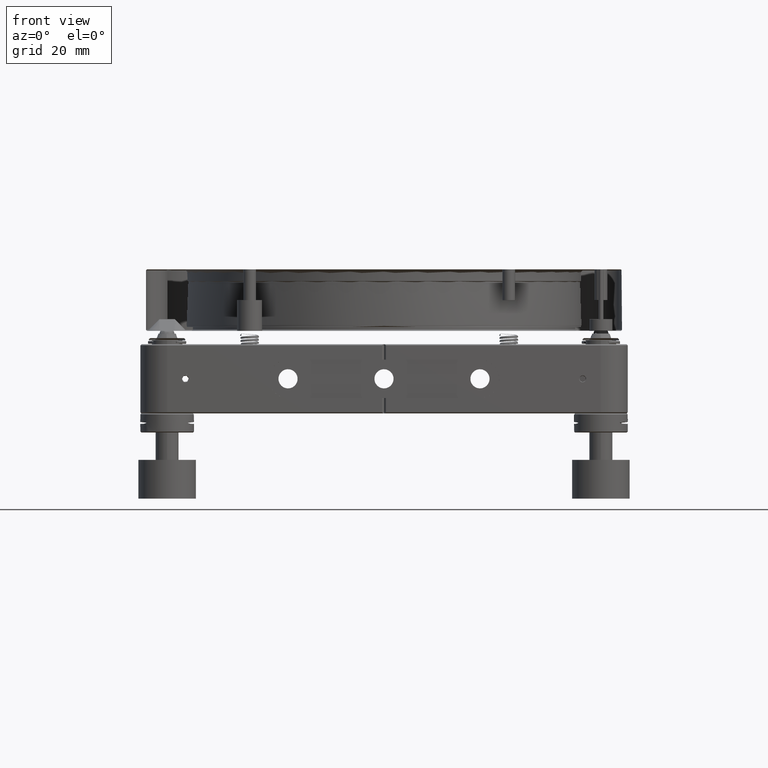
[diagram: clean part render]
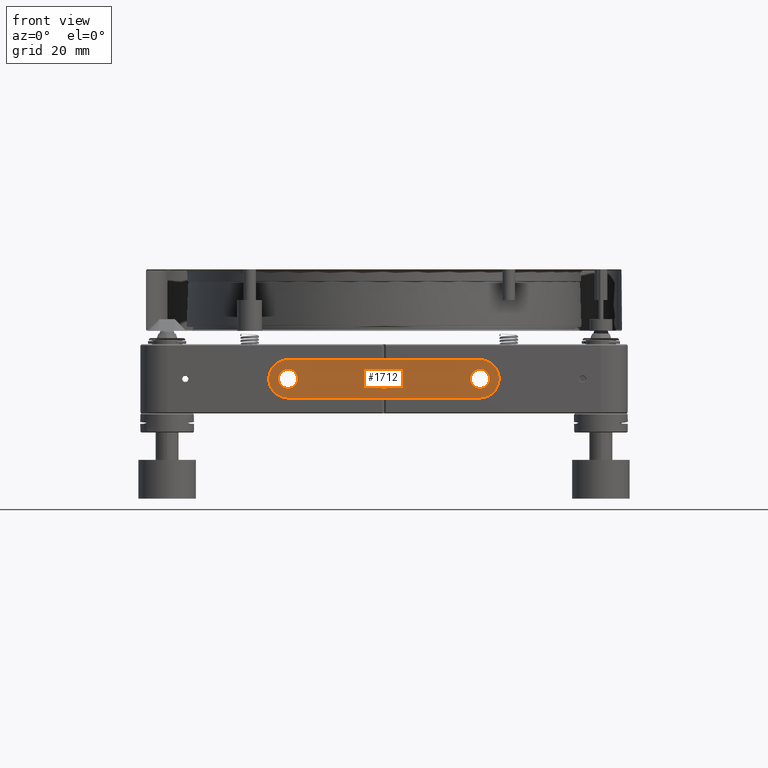
[diagram: same view with one face highlighted and labeled with its STEP entity id]
A machine part, front view. The second image highlights one B-rep face of the part: STEP entity #1712.
In plain terms, the highlighted planar face has unit normal (0, -1, 0).
Its self-contained STEP definition (entity closure, byte-faithful):
#39 = CARTESIAN_POINT ( 'NONE',  ( 28.65745963524035744, -62.99999999999998579, -3.413634435509056431 ) ) ;
#63 = CARTESIAN_POINT ( 'NONE',  ( -22.66760034583134598, -62.99999999999998579, -0.9001966847911081482 ) ) ;
#137 = VERTEX_POINT ( 'NONE', #17204 ) ;
#157 = CARTESIAN_POINT ( 'NONE',  ( 29.53337377807104858, -62.99999999999998579, -2.112177141283830828 ) ) ;
#185 = CARTESIAN_POINT ( 'NONE',  ( -25.88322341454923148, -62.99999999999997158, -2.338869636227246307 ) ) ;
#218 = CARTESIAN_POINT ( 'NONE',  ( 25.99979110497180557, -63.00000000000000000, -2.291518291723224632 ) ) ;
#274 = ORIENTED_EDGE ( 'NONE', *, *, #2098, .T. ) ;
#292 = CARTESIAN_POINT ( 'NONE',  ( -27.20036728157031547, -62.99999999999998579, -1.192851806848081786 ) ) ;
#326 = CARTESIAN_POINT ( 'NONE',  ( 25.31808423642111450, -62.99999999999998579, -2.499999999999988010 ) ) ;
#335 = CARTESIAN_POINT ( 'NONE',  ( -29.61721564279533325, -62.99999999999998579, 1.918790263200291557 ) ) ;
#375 = CARTESIAN_POINT ( 'NONE',  ( 29.40463598997589401, -62.99999999999997158, -2.376884631714613949 ) ) ;
#393 = CARTESIAN_POINT ( 'NONE',  ( -22.62750717870363104, -62.99999999999998579, -0.7901744029119247559 ) ) ;
#441 = CARTESIAN_POINT ( 'NONE',  ( -26.82085533151651546, -63.00000000000000000, 4.656705834973154268 ) ) ;
#492 = VERTEX_POINT ( 'NONE', #14996 ) ;
#553 = CARTESIAN_POINT ( 'NONE',  ( -26.76644682102774553, -63.00000000000000000, 4.677624995600781155 ) ) ;
#562 = CARTESIAN_POINT ( 'NONE',  ( 2.200367281571933287, -62.99999999999998579, 1.192851806846384699 ) ) ;
#614 = CARTESIAN_POINT ( 'NONE',  ( -25.31808423642359784, -63.00000000000000000, 2.499999999999994671 ) ) ;
#695 = CARTESIAN_POINT ( 'NONE',  ( 26.99648232654477553, -63.00000000000000000, 4.584313881982315486 ) ) ;
#768 = CARTESIAN_POINT ( 'NONE',  ( -29.63325495879742633, -62.99999999999998579, 1.879725603313253002 ) ) ;
#784 = CARTESIAN_POINT ( 'NONE',  ( 24.60695884761703667, -62.99999999999998579, -2.478058844081997947 ) ) ;
#881 = CARTESIAN_POINT ( 'NONE',  ( -26.99648232654283930, -62.99999999999998579, -4.584313881983445249 ) ) ;
#890 = CARTESIAN_POINT ( 'NONE',  ( 2.499932630023058877, -62.99999999999998579, 0.3175572163289239747 ) ) ;
#1009 = CARTESIAN_POINT ( 'NONE',  ( 23.47611484006083771, -63.00000000000000000, -2.011543708703912081 ) ) ;
#1043 = EDGE_CURVE ( 'NONE', #16677, #9239, #9490, .T. ) ;
#1106 = CARTESIAN_POINT ( 'NONE',  ( -28.99631896869059489, -63.00000000000000000, -3.024682387027708863 ) ) ;
#1126 = CARTESIAN_POINT ( 'NONE',  ( 22.55857726706113908, -62.99999999999997158, -0.6250002717117664197 ) ) ;
#1223 = CARTESIAN_POINT ( 'NONE',  ( -29.65670583497376356, -63.00000000000000000, -1.820855331515426334 ) ) ;
#1234 = CARTESIAN_POINT ( 'NONE',  ( 0.9602408923906317062, -62.99999999999998579, -2.308336204962085247 ) ) ;
#1243 = CARTESIAN_POINT ( 'NONE',  ( 23.94133748206389356, -63.00000000000001421, 2.265608056321490427 ) ) ;
#1291 = CARTESIAN_POINT ( 'NONE',  ( -1.058662517935616831, -63.00000000000001421, 2.265608056321512631 ) ) ;
#1410 = CARTESIAN_POINT ( 'NONE',  ( -2.050751496824272380, -62.99999999999998579, -1.448521019313458336 ) ) ;
#1441 = CARTESIAN_POINT ( 'NONE',  ( -25.00000000000000000, -62.99999999999998579, -2.499999999999989342 ) ) ;
#1477 = CARTESIAN_POINT ( 'NONE',  ( 27.41410801753523430, -62.99999999999998579, -0.6589295104400177960 ) ) ;
#1546 = CARTESIAN_POINT ( 'NONE',  ( -25.00000000000000000, -62.99999999999998579, 2.499999999999995115 ) ) ;
#1591 = CARTESIAN_POINT ( 'NONE',  ( 27.05075149682580715, -62.99999999999998579, 1.448521019312783320 ) ) ;
#1596 = VECTOR ( 'NONE', #19914, 1000.000000000000000 ) ;
#1640 = CARTESIAN_POINT ( 'NONE',  ( 29.58682686802303508, -62.99999999999998579, 1.997419278154202171 ) ) ;
#1705 = CARTESIAN_POINT ( 'NONE',  ( 25.15886374608104603, -62.99999999999997158, 2.499999999999995115 ) ) ;
#1712 = ADVANCED_FACE ( 'NONE', ( #17745, #21182, #17959, #12622 ), #5472, .T. ) ;
#1754 = CARTESIAN_POINT ( 'NONE',  ( 29.27735637908198640, -62.99999999999998579, -2.594781776741962531 ) ) ;
#1759 = CARTESIAN_POINT ( 'NONE',  ( -2.197608328451702064, -63.00000000000000000, 1.240878199725816922 ) ) ;
#1820 = CARTESIAN_POINT ( 'NONE',  ( 25.84608136104325027, -62.99999999999998579, 2.352582858675997812 ) ) ;
#1867 = CARTESIAN_POINT ( 'NONE',  ( 28.83008438849111954, -62.99999999999995737, -3.222274190315424391 ) ) ;
#1932 = CARTESIAN_POINT ( 'NONE',  ( 26.52388515993983376, -63.00000000000000000, 2.011543708704508049 ) ) ;
#1983 = CARTESIAN_POINT ( 'NONE',  ( 29.08871142856226300, -63.00000000000000000, -2.879225836244683645 ) ) ;
#2091 = CARTESIAN_POINT ( 'NONE',  ( 29.67763309198122101, -62.99999999999998579, 1.766426363815547296 ) ) ;
#2098 = EDGE_CURVE ( 'NONE', #15310, #10384, #14643, .T. ) ;
#2152 = CARTESIAN_POINT ( 'NONE',  ( 25.00000000000000000, -62.99999999999998579, -2.499999999999989342 ) ) ;
#2217 = CARTESIAN_POINT ( 'NONE',  ( -25.00000000000000000, -62.99999999999998579, -2.499999999999989342 ) ) ;
#2223 = CARTESIAN_POINT ( 'NONE',  ( -26.52388515994153551, -62.99999999999997158, -2.011543708703749544 ) ) ;
#2269 = CARTESIAN_POINT ( 'NONE',  ( -26.99741927815217224, -63.00000000000000000, 4.586826868024192372 ) ) ;
#2277 = DIRECTION ( 'NONE',  ( 0.000000000000000000, -1.000000000000000000, 0.000000000000000000 ) ) ;
#2281 = CARTESIAN_POINT ( 'NONE',  ( 2.050751496826440867, -62.99999999999998579, 1.448521019311168168 ) ) ;
#2306 = CARTESIAN_POINT ( 'NONE',  ( 26.18717296926685734, -63.00000000000000000, 4.858224524120602794 ) ) ;
#2333 = CARTESIAN_POINT ( 'NONE',  ( -26.05866251793728594, -62.99999999999998579, 2.265608056320328689 ) ) ;
#2487 = CARTESIAN_POINT ( 'NONE',  ( -27.66389036190169293, -62.99999999999998579, 4.232142202942585918 ) ) ;
#2597 = CARTESIAN_POINT ( 'NONE',  ( -29.48224539639718955, -62.99999999999998579, -2.227075478313985002 ) ) ;
#2614 = CARTESIAN_POINT ( 'NONE',  ( 22.64740161464915147, -62.99999999999997158, 0.8460421177830997896 ) ) ;
#2720 = CARTESIAN_POINT ( 'NONE',  ( 2.338877794310393998, -62.99999999999998579, -0.8832027952101421109 ) ) ;
#2821 = CARTESIAN_POINT ( 'NONE',  ( -27.80668226202149640, -62.99999999999998579, -4.138788144596949437 ) ) ;
#2831 = CARTESIAN_POINT ( 'NONE',  ( 1.448521019312495772, -62.99999999999998579, -2.050751496825837794 ) ) ;
#2938 = CARTESIAN_POINT ( 'NONE',  ( -25.98944765923300437, -63.00000000000001421, -4.901161759914474558 ) ) ;
#2949 = CARTESIAN_POINT ( 'NONE',  ( 2.372492821295961285, -63.00000000000001421, -0.7901744029160351346 ) ) ;
#2956 = CARTESIAN_POINT ( 'NONE',  ( 24.68191576358069739, -63.00000000000000000, 2.499999999999995115 ) ) ;
#3055 = CARTESIAN_POINT ( 'NONE',  ( -29.66345881266363449, -63.00000000000000000, -1.803482141347654943 ) ) ;
#3123 = CARTESIAN_POINT ( 'NONE',  ( -1.224646799147350002E-16, -62.99999999999998579, -2.499999999999992895 ) ) ;
#3193 = ORIENTED_EDGE ( 'NONE', *, *, #13800, .T. ) ;
#3258 = CARTESIAN_POINT ( 'NONE',  ( -24.34095874604167520, -63.00000000000000000, 2.414063805987865852 ) ) ;
#3266 = CARTESIAN_POINT ( 'NONE',  ( -25.79023958663312399, -63.00000000000000000, -2.372467031226667800 ) ) ;
#3348 = CARTESIAN_POINT ( 'NONE',  ( 27.44808808539379896, -63.00000000000001421, -4.360549651258586401 ) ) ;
#3460 = CARTESIAN_POINT ( 'NONE',  ( 28.98731338067594265, -63.00000000000000000, -3.018147385784606396 ) ) ;
#3466 = CARTESIAN_POINT ( 'NONE',  ( -2.332399654168844538, -63.00000000000000000, 0.9001966847908576819 ) ) ;
#3543 = CARTESIAN_POINT ( 'NONE',  ( 25.00000000000000000, -62.99999999999998579, 5.000000000000009770 ) ) ;
#3576 = CARTESIAN_POINT ( 'NONE',  ( 28.22227419030972939, -63.00000000000000000, 3.830084388496846959 ) ) ;
#3591 = B_SPLINE_CURVE_WITH_KNOTS ( 'NONE', 3,
 ( #1546, #8234, #20325, #3258, #15192, #15305, #10169, #22043, #13369, #4736, #8462, #11654, #17124, #13486, #4857, #9020, #12564, #12675, #5414, #10622, #7421, #20900, #393, #16091, #15873, #63, #7307, #19510, #14270, #12229, #10837, #3926, #17794, #10946, #14378, #9127, #6984, #2217 ),
 .UNSPECIFIED., .F., .F.,
 ( 4, 1, 1, 1, 2, 2, 2, 1, 1, 1, 2, 2, 2, 1, 1, 1, 2, 2, 2, 1, 1, 1, 2, 2, 4 ),
 ( 0.000000000000000000, 0.06249999999999912570, 0.09374999999999870937, 0.1093749999999991673, 0.1171874999999993616, 0.1249999999999995559, 0.2499999999999983902, 0.3124999999999977796, 0.3437499999999975020, 0.3593749999999973910, 0.3671874999999971134, 0.3749999999999968359, 0.4999999999999930056, 0.5624999999999911182, 0.5937499999999901190, 0.6093749999999897859, 0.6171874999999896749, 0.6249999999999895639, 0.7499999999999905631, 0.8124999999999912292, 0.8437499999999908962, 0.8593749999999913403, 0.8671874999999915623, 0.8749999999999917843, 1.000000000000000000 ),
 .UNSPECIFIED. ) ;
#3606 = CARTESIAN_POINT ( 'NONE',  ( -27.47811779281090949, -62.99999999999998579, 0.3928921610239097806 ) ) ;
#3636 = CARTESIAN_POINT ( 'NONE',  ( 27.26560805632139051, -62.99999999999998579, 1.058662517935855085 ) ) ;
#3684 = CARTESIAN_POINT ( 'NONE',  ( 27.59350902500160885, -63.00000000000000000, -4.275615982597602560 ) ) ;
#3712 = CARTESIAN_POINT ( 'NONE',  ( -27.05075149682427949, -62.99999999999998579, -1.448521019313433689 ) ) ;
#3753 = CARTESIAN_POINT ( 'NONE',  ( 26.05866251793718291, -62.99999999999998579, -2.265608056320766561 ) ) ;
#3762 = CARTESIAN_POINT ( 'NONE',  ( -28.98731338068604657, -63.00000000000000000, 3.018147385774896385 ) ) ;
#3802 = CARTESIAN_POINT ( 'NONE',  ( 29.69855148292365499, -62.99999999999998579, 1.710778326449314601 ) ) ;
#3880 = CARTESIAN_POINT ( 'NONE',  ( 0.1588637460817494684, -63.00000000000000000, 2.499999999999993339 ) ) ;
#3926 = CARTESIAN_POINT ( 'NONE',  ( -23.94133748206292012, -62.99999999999998579, -2.265608056320463692 ) ) ;
#3945 = EDGE_CURVE ( 'NONE', #137, #15310, #18559, .T. ) ;
#3979 = CARTESIAN_POINT ( 'NONE',  ( -28.29168244730281145, -63.00000000000000000, 3.779332846794235312 ) ) ;
#4041 = CARTESIAN_POINT ( 'NONE',  ( -25.99979110497188728, -62.99999999999998579, 2.291518291722963507 ) ) ;
#4086 = CARTESIAN_POINT ( 'NONE',  ( -29.08871142856869696, -63.00000000000001421, 2.879225836238513025 ) ) ;
#4187 = ORIENTED_EDGE ( 'NONE', *, *, #11463, .T. ) ;
#4194 = CARTESIAN_POINT ( 'NONE',  ( -29.53337377808218989, -63.00000000000000000, 2.112177141261452284 ) ) ;
#4226 = CARTESIAN_POINT ( 'NONE',  ( 26.91885272841129861, -63.00000000000000000, 4.617333232621682271 ) ) ;
#4305 = CARTESIAN_POINT ( 'NONE',  ( -27.87922583624148487, -62.99999999999998579, -4.088711428565466655 ) ) ;
#4339 = CARTESIAN_POINT ( 'NONE',  ( 25.98944765923365097, -63.00000000000000000, 4.901161759914417715 ) ) ;
#4371 = ORIENTED_EDGE ( 'NONE', *, *, #1043, .T. ) ;
#4432 = CARTESIAN_POINT ( 'NONE',  ( 22.80239167154934776, -63.00000000000000000, 1.240878199725621522 ) ) ;
#4515 = ORIENTED_EDGE ( 'NONE', *, *, #3945, .T. ) ;
#4523 = EDGE_CURVE ( 'NONE', #492, #13865, #17528, .T. ) ;
#4531 = CARTESIAN_POINT ( 'NONE',  ( -29.69855148292365499, -63.00000000000000000, -1.710778326451560583 ) ) ;
#4548 = CARTESIAN_POINT ( 'NONE',  ( 23.35412142490235254, -62.99999999999998579, 1.889707849479767221 ) ) ;
#4659 = CARTESIAN_POINT ( 'NONE',  ( 2.352598385350364918, -63.00000000000000000, -0.8460421177848148622 ) ) ;
#4669 = CARTESIAN_POINT ( 'NONE',  ( 25.00000000000000000, -62.99999999999998579, 2.499999999999995115 ) ) ;
#4695 = CARTESIAN_POINT ( 'NONE',  ( 25.00000000000000000, -62.99999999999998579, -4.999999999999990230 ) ) ;
#4719 = ORIENTED_EDGE ( 'NONE', *, *, #4523, .T. ) ;
#4736 = CARTESIAN_POINT ( 'NONE',  ( -23.47611484006164417, -62.99999999999997158, 2.011543708708192213 ) ) ;
#4784 = CARTESIAN_POINT ( 'NONE',  ( 23.55147898068659984, -63.00000000000000000, 2.050751496826031417 ) ) ;
#4835 = CARTESIAN_POINT ( 'NONE',  ( -2.441422732939904972, -62.99999999999998579, -0.6250002717145693998 ) ) ;
#4857 = CARTESIAN_POINT ( 'NONE',  ( -22.70848170827606083, -62.99999999999998579, 0.9997911049701574404 ) ) ;
#4903 = CARTESIAN_POINT ( 'NONE',  ( 27.44142273294093926, -62.99999999999997158, 0.6250002717085844095 ) ) ;
#5014 = CARTESIAN_POINT ( 'NONE',  ( 27.35259838535036181, -62.99999999999998579, -0.8460421177848109764 ) ) ;
#5166 = CARTESIAN_POINT ( 'NONE',  ( 29.63325495879537286, -63.00000000000000000, -1.879725603317363936 ) ) ;
#5170 = CARTESIAN_POINT ( 'NONE',  ( -2.265608056320723040, -62.99999999999998579, -1.058662517936148406 ) ) ;
#5279 = CARTESIAN_POINT ( 'NONE',  ( 28.01814738578012864, -62.99999999999997158, 3.987313380680431063 ) ) ;
#5285 = CARTESIAN_POINT ( 'NONE',  ( -1.645878575096990204, -63.00000000000001421, 1.889707849479796975 ) ) ;
#5341 = CARTESIAN_POINT ( 'NONE',  ( 26.88970784947963821, -63.00000000000001421, 1.645878575097296626 ) ) ;
#5393 = CARTESIAN_POINT ( 'NONE',  ( 28.99631896869385628, -62.99999999999998579, 3.024682387024473229 ) ) ;
#5414 = CARTESIAN_POINT ( 'NONE',  ( -22.50006736997797674, -62.99999999999998579, 0.3175572163181977769 ) ) ;
#5472 = PLANE ( 'NONE',  #10967 ) ;
#5571 = CARTESIAN_POINT ( 'NONE',  ( -30.00003370200636610, -63.00000000000001421, -0.3177315870937306164 ) ) ;
#5636 = CARTESIAN_POINT ( 'NONE',  ( -25.62482982772515783, -62.99999999999997158, 2.441490250885353763 ) ) ;
#5689 = CARTESIAN_POINT ( 'NONE',  ( 0.9001966847906652802, -62.99999999999998579, 2.332399654168985759 ) ) ;
#5743 = CARTESIAN_POINT ( 'NONE',  ( -27.33239965416879613, -62.99999999999998579, 0.9001966847909936842 ) ) ;
#5793 = CARTESIAN_POINT ( 'NONE',  ( 25.00000000000000000, -62.99999999999998579, 1.531726841841384132E-14 ) ) ;
#5796 = CARTESIAN_POINT ( 'NONE',  ( 1.523885159939089684, -62.99999999999998579, 2.011543708706347022 ) ) ;
#5844 = EDGE_LOOP ( 'NONE', ( #4371, #12408 ) ) ;
#5846 = CARTESIAN_POINT ( 'NONE',  ( -25.90019668479078518, -63.00000000000000000, -2.332399654168878289 ) ) ;
#5924 = CARTESIAN_POINT ( 'NONE',  ( 26.87812417501154272, -63.00000000000000000, 4.634031467658619619 ) ) ;
#6108 = DIRECTION ( 'NONE',  ( 1.000000000000000000, -0.000000000000000000, 3.122502256758252770E-16 ) ) ;
#6116 = CARTESIAN_POINT ( 'NONE',  ( 2.265608056321665398, -62.99999999999998579, 1.058662517935147429 ) ) ;
#6153 = B_SPLINE_CURVE_WITH_KNOTS ( 'NONE', 3,
 ( #21194, #20134, #784, #21969, #14883, #13079, #14659, #21851, #16709, #1009, #14998, #6464, #20254, #7929, #18421, #18190, #13419, #1126, #13191, #7708, #20371, #16827, #14771, #2614, #6344, #20016, #4432, #6234, #4548, #4784, #11349, #1243, #18304, #21743, #9987, #11468, #2956, #4669 ),
 .UNSPECIFIED., .F., .F.,
 ( 4, 1, 1, 1, 2, 2, 2, 1, 1, 1, 2, 2, 2, 1, 1, 1, 2, 2, 2, 1, 1, 1, 2, 2, 4 ),
 ( 0.000000000000000000, 0.06250000000000097145, 0.09375000000000079103, 0.1093750000000006939, 0.1171875000000006245, 0.1250000000000005551, 0.2500000000000000000, 0.3124999999999992228, 0.3437499999999992228, 0.3593749999999992228, 0.3671874999999993894, 0.3749999999999996114, 0.5000000000000058842, 0.5625000000000089928, 0.5937500000000105471, 0.6093750000000114353, 0.6171875000000118794, 0.6250000000000124345, 0.7500000000000157652, 0.8125000000000170974, 0.8437500000000183187, 0.8593750000000183187, 0.8671875000000183187, 0.8750000000000184297, 1.000000000000000000 ),
 .UNSPECIFIED. ) ;
#6234 = CARTESIAN_POINT ( 'NONE',  ( 22.98845629129619894, -62.99999999999998579, 1.523885159939563527 ) ) ;
#6327 = CARTESIAN_POINT ( 'NONE',  ( -29.36054965125114080, -63.00000000000000000, -2.448088085406040282 ) ) ;
#6338 = CARTESIAN_POINT ( 'NONE',  ( 2.478117792811819431, -62.99999999999998579, -0.3928921610258919173 ) ) ;
#6344 = CARTESIAN_POINT ( 'NONE',  ( 22.66112220568935243, -63.00000000000000000, 0.8832027952092421641 ) ) ;
#6455 = CARTESIAN_POINT ( 'NONE',  ( 0.9997911049709309328, -63.00000000000000000, -2.291518291723609213 ) ) ;
#6464 = CARTESIAN_POINT ( 'NONE',  ( 22.94924850317362086, -63.00000000000000000, -1.448521019313290914 ) ) ;
#6510 = CARTESIAN_POINT ( 'NONE',  ( -0.9997911049708632092, -62.99999999999998579, 2.291518291723675826 ) ) ;
#6540 = VERTEX_POINT ( 'NONE', #16028 ) ;
#6690 = CARTESIAN_POINT ( 'NONE',  ( 27.19760832844967879, -63.00000000000000000, -1.240878199725687026 ) ) ;
#6954 = CARTESIAN_POINT ( 'NONE',  ( 29.82817184585908876, -62.99999999999998579, 1.318087882501627561 ) ) ;
#6958 = CARTESIAN_POINT ( 'NONE',  ( -1.448521019312252411, -62.99999999999998579, 2.050751496826083375 ) ) ;
#6984 = CARTESIAN_POINT ( 'NONE',  ( -24.68191576357675743, -63.00000000000001421, -2.499999999999988898 ) ) ;
#7077 = CARTESIAN_POINT ( 'NONE',  ( 29.59280389929835664, -63.00000000000000000, -1.977199857427052843 ) ) ;
#7185 = CARTESIAN_POINT ( 'NONE',  ( 30.00003370200635544, -63.00000000000000000, 0.3177315870882264082 ) ) ;
#7213 = CARTESIAN_POINT ( 'NONE',  ( -27.33887779431028520, -63.00000000000000000, 0.8832027952098696622 ) ) ;
#7252 = CARTESIAN_POINT ( 'NONE',  ( -29.64162989536004744, -62.99999999999997158, 1.858936727243038822 ) ) ;
#7307 = CARTESIAN_POINT ( 'NONE',  ( -22.80239167154529767, -62.99999999999998579, -1.240878199721766606 ) ) ;
#7314 = CARTESIAN_POINT ( 'NONE',  ( -27.29151829172320376, -62.99999999999997158, -0.9997911049711722953 ) ) ;
#7362 = CARTESIAN_POINT ( 'NONE',  ( -28.02468238702178382, -62.99999999999998579, 3.996318968695973695 ) ) ;
#7421 = CARTESIAN_POINT ( 'NONE',  ( -22.52188220718726797, -62.99999999999998579, -0.3928921610165019840 ) ) ;
#7456 = LINE ( 'NONE', #3543, #13251 ) ;
#7510 = CARTESIAN_POINT ( 'NONE',  ( 26.04898709126347356, -62.99999999999998579, 4.889020966873618868 ) ) ;
#7538 = CARTESIAN_POINT ( 'NONE',  ( -27.35259838535012733, -62.99999999999998579, 0.8460421177842942786 ) ) ;
#7575 = CARTESIAN_POINT ( 'NONE',  ( 25.62482982772267093, -62.99999999999997158, -2.441490250885347546 ) ) ;
#7688 = CARTESIAN_POINT ( 'NONE',  ( -26.18717296926498506, -63.00000000000001421, -4.858224524120768884 ) ) ;
#7708 = CARTESIAN_POINT ( 'NONE',  ( 22.49996631501050359, -63.00000000000000000, 0.1587786081607391042 ) ) ;
#7811 = CARTESIAN_POINT ( 'NONE',  ( 1.058662517935727632, -63.00000000000001421, -2.265608056321403829 ) ) ;
#7929 = CARTESIAN_POINT ( 'NONE',  ( 22.73439194367835725, -62.99999999999998579, -1.058662517936073133 ) ) ;
#8093 = EDGE_CURVE ( 'NONE', #10384, #21023, #12974, .T. ) ;
#8145 = CARTESIAN_POINT ( 'NONE',  ( -27.37688463170090358, -63.00000000000000000, -4.404635989982694788 ) ) ;
#8212 = CARTESIAN_POINT ( 'NONE',  ( -2.011543708705106237, -62.99999999999997158, 1.523885159939499578 ) ) ;
#8234 = CARTESIAN_POINT ( 'NONE',  ( -24.84113625391682234, -62.99999999999998579, 2.499999999999995115 ) ) ;
#8334 = ORIENTED_EDGE ( 'NONE', *, *, #16114, .T. ) ;
#8355 = CARTESIAN_POINT ( 'NONE',  ( -25.15886374608065879, -63.00000000000000000, -2.499999999999988898 ) ) ;
#8406 = CARTESIAN_POINT ( 'NONE',  ( -25.00000000000000000, -62.99999999999998579, -5.000000000000002665 ) ) ;
#8440 = CARTESIAN_POINT ( 'NONE',  ( -2.414108017535905759, -63.00000000000000000, 0.6589295104351285959 ) ) ;
#8462 = CARTESIAN_POINT ( 'NONE',  ( -23.11029215051964059, -63.00000000000001421, 1.645878575095454099 ) ) ;
#8533 = DIRECTION ( 'NONE',  ( 1.000000000000000000, -0.000000000000000000, 3.122502256758252770E-16 ) ) ;
#8552 = CARTESIAN_POINT ( 'NONE',  ( 29.48224539640385089, -62.99999999999998579, 2.227075478302363631 ) ) ;
#8615 = CARTESIAN_POINT ( 'NONE',  ( 25.88322341454932385, -63.00000000000000000, 2.338869636227253856 ) ) ;
#8667 = CARTESIAN_POINT ( 'NONE',  ( 28.29168244731750903, -62.99999999999997158, -3.779332846780062649 ) ) ;
#8672 = CARTESIAN_POINT ( 'NONE',  ( -1.192851806847200269, -63.00000000000000000, 2.200367281571662392 ) ) ;
#8785 = CARTESIAN_POINT ( 'NONE',  ( 26.82085533151655099, -62.99999999999998579, -4.656705834973076108 ) ) ;
#8812 = ORIENTED_EDGE ( 'NONE', *, *, #13852, .T. ) ;
#8895 = CARTESIAN_POINT ( 'NONE',  ( 27.66389036190081185, -62.99999999999998579, -4.232142202943312448 ) ) ;
#8999 = CARTESIAN_POINT ( 'NONE',  ( 25.31781674231116597, -62.99999999999998579, -4.999999999999992895 ) ) ;
#9020 = CARTESIAN_POINT ( 'NONE',  ( -22.69166379503773356, -63.00000000000000000, 0.9602408923902253646 ) ) ;
#9083 = CARTESIAN_POINT ( 'NONE',  ( 0.8460813610435675702, -62.99999999999998579, 2.352582858675995148 ) ) ;
#9127 = CARTESIAN_POINT ( 'NONE',  ( -24.37517017227519034, -62.99999999999998579, -2.441490250885347102 ) ) ;
#9134 = CARTESIAN_POINT ( 'NONE',  ( -25.84608136104306553, -62.99999999999997158, -2.352582858675989819 ) ) ;
#9239 = VERTEX_POINT ( 'NONE', #20328 ) ;
#9276 = CARTESIAN_POINT ( 'NONE',  ( 25.93869970804105662, -63.00000000000000000, -2.317157034016734229 ) ) ;
#9428 = CARTESIAN_POINT ( 'NONE',  ( 26.68987103900067126, -62.99999999999998579, 4.708581655926342258 ) ) ;
#9490 = B_SPLINE_CURVE_WITH_KNOTS ( 'NONE', 3,
 ( #3123, #18818, #16873, #13697, #20418, #9915, #12211, #15171, #13466, #19163, #15517, #1410, #22489, #5170, #19043, #20771, #20881, #4835, #12099, #13922, #22141, #8440, #17336, #20654, #17104, #3466, #1759, #8212, #5285, #6958, #8672, #1291, #6510, #11757, #18699, #10267, #22379, #10033 ),
 .UNSPECIFIED., .F., .F.,
 ( 4, 1, 1, 1, 2, 2, 2, 1, 1, 1, 2, 2, 2, 1, 1, 1, 2, 2, 2, 1, 1, 1, 2, 2, 4 ),
 ( 0.000000000000000000, 0.06249999999999988898, 0.09374999999999986122, 0.1093749999999998612, 0.1171874999999998890, 0.1249999999999999167, 0.2500000000000002220, 0.3125000000000003331, 0.3437500000000003886, 0.3593750000000003331, 0.3671875000000003331, 0.3750000000000003331, 0.5000000000000002220, 0.5625000000000001110, 0.5937500000000000000, 0.6093750000000000000, 0.6171875000000000000, 0.6250000000000000000, 0.7499999999999997780, 0.8124999999999996669, 0.8437499999999996669, 0.8593749999999996669, 0.8671874999999996669, 0.8749999999999996669, 1.000000000000000000 ),
 .UNSPECIFIED. ) ;
#9506 = CARTESIAN_POINT ( 'NONE',  ( -26.46058687167309031, -63.00000000000000000, -4.786759935983535108 ) ) ;
#9542 = CARTESIAN_POINT ( 'NONE',  ( 26.46058687167558077, -63.00000000000000000, 4.786759935983313952 ) ) ;
#9628 = CARTESIAN_POINT ( 'NONE',  ( 2.441422732940944140, -62.99999999999997158, 0.6250002717085818560 ) ) ;
#9727 = LINE ( 'NONE', #18402, #17290 ) ;
#9845 = CARTESIAN_POINT ( 'NONE',  ( -28.01814738577957797, -63.00000000000000000, -3.987313380680978181 ) ) ;
#9915 = CARTESIAN_POINT ( 'NONE',  ( -0.8460813610437932786, -62.99999999999998579, -2.352582858675995592 ) ) ;
#9966 = CARTESIAN_POINT ( 'NONE',  ( -29.67763309198120680, -62.99999999999998579, -1.766426363816855583 ) ) ;
#9987 = CARTESIAN_POINT ( 'NONE',  ( 24.06130029195884390, -62.99999999999998579, 2.317157034016741779 ) ) ;
#10033 = CARTESIAN_POINT ( 'NONE',  ( 1.836970198721025004E-16, -62.99999999999998579, 2.499999999999992895 ) ) ;
#10100 = CARTESIAN_POINT ( 'NONE',  ( 27.50003368498846612, -62.99999999999998579, -0.1587786081644574632 ) ) ;
#10169 = CARTESIAN_POINT ( 'NONE',  ( -24.11677658545017522, -62.99999999999998579, 2.338869636227252080 ) ) ;
#10209 = CARTESIAN_POINT ( 'NONE',  ( 27.33887779431040244, -63.00000000000000000, -0.8832027952101385582 ) ) ;
#10262 = CARTESIAN_POINT ( 'NONE',  ( 29.61721564279143593, -62.99999999999997158, -1.918790263208135727 ) ) ;
#10267 = CARTESIAN_POINT ( 'NONE',  ( -0.6248298277219418440, -63.00000000000000000, 2.441490250885352875 ) ) ;
#10322 = EDGE_CURVE ( 'NONE', #16175, #15318, #3591, .T. ) ;
#10374 = CARTESIAN_POINT ( 'NONE',  ( 29.23214220294310906, -63.00000000000001421, 2.663890361901039228 ) ) ;
#10384 = VERTEX_POINT ( 'NONE', #19180 ) ;
#10439 = CARTESIAN_POINT ( 'NONE',  ( 25.39304115237993287, -62.99999999999998579, 2.478058844082004164 ) ) ;
#10490 = CARTESIAN_POINT ( 'NONE',  ( 27.87922583624185080, -62.99999999999998579, 4.088711428565124706 ) ) ;
#10521 = CARTESIAN_POINT ( 'NONE',  ( -27.44142273294199086, -62.99999999999998579, -0.6250002717092797422 ) ) ;
#10599 = CARTESIAN_POINT ( 'NONE',  ( 28.02468238702532233, -63.00000000000000000, -3.996318968692976092 ) ) ;
#10622 = CARTESIAN_POINT ( 'NONE',  ( -22.49996631501101874, -63.00000000000000000, -0.1587786081590943366 ) ) ;
#10714 = CARTESIAN_POINT ( 'NONE',  ( 25.78623849252068112, -62.99999999999998579, -4.956117688164009216 ) ) ;
#10795 = CARTESIAN_POINT ( 'NONE',  ( 0.3930411523811468411, -62.99999999999998579, 2.478058844082002832 ) ) ;
#10817 = CARTESIAN_POINT ( 'NONE',  ( 27.37688463170491104, -63.00000000000000000, 4.404635989980335786 ) ) ;
#10837 = CARTESIAN_POINT ( 'NONE',  ( -23.80714819315033992, -63.00000000000000000, -2.200367281569867828 ) ) ;
#10898 = CARTESIAN_POINT ( 'NONE',  ( 1.889707849479998369, -62.99999999999997158, 1.645878575096372032 ) ) ;
#10946 = CARTESIAN_POINT ( 'NONE',  ( -24.03975910760895829, -63.00000000000001421, -2.308336204961786819 ) ) ;
#10952 = CARTESIAN_POINT ( 'NONE',  ( -25.93869970804090386, -62.99999999999997158, 2.317157034016741335 ) ) ;
#10967 = AXIS2_PLACEMENT_3D ( 'NONE', #5793, #2277, #12397 ) ;
#11000 = CARTESIAN_POINT ( 'NONE',  ( -27.59350902500179714, -63.00000000000000000, 4.275615982597197551 ) ) ;
#11221 = CARTESIAN_POINT ( 'NONE',  ( -27.59478177673413768, -63.00000000000000000, -4.277356379085871296 ) ) ;
#11332 = CARTESIAN_POINT ( 'NONE',  ( 25.00000000000000000, -62.99999999999998579, -2.499999999999989342 ) ) ;
#11349 = CARTESIAN_POINT ( 'NONE',  ( 23.80714819315194575, -62.99999999999998579, 2.200367281571621980 ) ) ;
#11393 = VERTEX_POINT ( 'NONE', #8406 ) ;
#11448 = CARTESIAN_POINT ( 'NONE',  ( -26.68987103899925373, -63.00000000000002842, -4.708581655926461274 ) ) ;
#11463 = EDGE_CURVE ( 'NONE', #21023, #6540, #7456, .T. ) ;
#11468 = CARTESIAN_POINT ( 'NONE',  ( 24.37517017227912675, -62.99999999999997158, 2.441490250885353763 ) ) ;
#11576 = CARTESIAN_POINT ( 'NONE',  ( 0.3180842364207812079, -63.00000000000002842, -2.499999999999993783 ) ) ;
#11584 = CARTESIAN_POINT ( 'NONE',  ( -25.00000000000000000, -62.99999999999998579, 2.499999999999995115 ) ) ;
#11654 = CARTESIAN_POINT ( 'NONE',  ( -22.94924850317291387, -62.99999999999998579, 1.448521019309558788 ) ) ;
#11683 = CARTESIAN_POINT ( 'NONE',  ( -25.94968427946110268, -63.00000000000001421, -4.909020581402805838 ) ) ;
#11757 = CARTESIAN_POINT ( 'NONE',  ( -0.9602408923905947358, -62.99999999999998579, 2.308336204962120330 ) ) ;
#11763 = EDGE_CURVE ( 'NONE', #15318, #16175, #13997, .T. ) ;
#11822 = CARTESIAN_POINT ( 'NONE',  ( 25.90019668479084558, -62.99999999999998579, 2.332399654168879621 ) ) ;
#11899 = CARTESIAN_POINT ( 'NONE',  ( -25.65904125395502433, -62.99999999999997158, -2.414063805987859634 ) ) ;
#11932 = CARTESIAN_POINT ( 'NONE',  ( 27.01154370870101573, -62.99999999999998579, -1.523885159941430034 ) ) ;
#12094 = CARTESIAN_POINT ( 'NONE',  ( 29.64162989536006521, -63.00000000000000000, -1.858936727242500808 ) ) ;
#12099 = CARTESIAN_POINT ( 'NONE',  ( -2.499932630022021485, -63.00000000000000000, -0.3175572163214660515 ) ) ;
#12211 = CARTESIAN_POINT ( 'NONE',  ( -0.8832234145496025146, -63.00000000000000000, -2.338869636227251636 ) ) ;
#12229 = CARTESIAN_POINT ( 'NONE',  ( -23.55147898068445045, -62.99999999999998579, -2.050751496823692399 ) ) ;
#12319 = CARTESIAN_POINT ( 'NONE',  ( 27.59478177673641497, -63.00000000000000000, 4.277356379084529259 ) ) ;
#12397 = DIRECTION ( 'NONE',  ( 0.000000000000000000, -0.000000000000000000, -1.000000000000000000 ) ) ;
#12408 = ORIENTED_EDGE ( 'NONE', *, *, #18596, .T. ) ;
#12461 = CARTESIAN_POINT ( 'NONE',  ( -27.31716125388820160, -63.00000000000000000, -0.9386890552918881747 ) ) ;
#12507 = CARTESIAN_POINT ( 'NONE',  ( -29.95617666667515167, -62.99999999999998579, -0.7860894708902034234 ) ) ;
#12564 = CARTESIAN_POINT ( 'NONE',  ( -22.68283874611167050, -63.00000000000000000, 0.9386890552917757091 ) ) ;
#12571 = CARTESIAN_POINT ( 'NONE',  ( -25.00000000000000000, -62.99999999999998579, 2.499999999999995115 ) ) ;
#12622 = FACE_BOUND ( 'NONE', #5844, .T. ) ;
#12675 = CARTESIAN_POINT ( 'NONE',  ( -22.55857726706009814, -62.99999999999997158, 0.6250002717112139727 ) ) ;
#12681 = CARTESIAN_POINT ( 'NONE',  ( -27.01154370870077415, -63.00000000000000000, 1.523885159942602874 ) ) ;
#12734 = CARTESIAN_POINT ( 'NONE',  ( 0.6590412539564574068, -62.99999999999998579, 2.414063805987863631 ) ) ;
#12759 = CARTESIAN_POINT ( 'NONE',  ( 25.30600224277300825, -63.00000000000000000, 5.000000000000009770 ) ) ;
#12810 = CARTESIAN_POINT ( 'NONE',  ( -6.049848122469114742E-15, -62.99999999999998579, 5.000000000000001776 ) ) ;
#12837 = CARTESIAN_POINT ( 'NONE',  ( -28.65745963524771511, -62.99999999999998579, 3.413634435502000297 ) ) ;
#12974 = LINE ( 'NONE', #16495, #1596 ) ;
#12983 = CARTESIAN_POINT ( 'NONE',  ( 25.60927399679325234, -63.00000000000000000, 4.972175614027634083 ) ) ;
#13071 = CARTESIAN_POINT ( 'NONE',  ( 2.317161253888264660, -63.00000000000000000, 0.9386890552919371356 ) ) ;
#13079 = CARTESIAN_POINT ( 'NONE',  ( 24.15391863895596813, -62.99999999999998579, -2.352582858675990707 ) ) ;
#13191 = CARTESIAN_POINT ( 'NONE',  ( 22.50006736997901058, -62.99999999999997158, -0.3175572163214688826 ) ) ;
#13251 = VECTOR ( 'NONE', #19648, 1000.000000000000000 ) ;
#13283 = CARTESIAN_POINT ( 'NONE',  ( -28.77933284678741899, -62.99999999999998579, -3.291682447310166459 ) ) ;
#13292 = CARTESIAN_POINT ( 'NONE',  ( 2.414108017535227635, -62.99999999999998579, -0.6589295104400222369 ) ) ;
#13369 = CARTESIAN_POINT ( 'NONE',  ( -23.75912180026718801, -63.00000000000001421, 2.197608328446648773 ) ) ;
#13419 = CARTESIAN_POINT ( 'NONE',  ( 22.68283874611160655, -62.99999999999998579, -0.9386890552917330766 ) ) ;
#13466 = CARTESIAN_POINT ( 'NONE',  ( -1.240878199729429809, -62.99999999999998579, -2.197608328448788395 ) ) ;
#13486 = CARTESIAN_POINT ( 'NONE',  ( -22.73439194367804816, -63.00000000000000000, 1.058662517934445990 ) ) ;
#13506 = ORIENTED_EDGE ( 'NONE', *, *, #10322, .T. ) ;
#13532 = CARTESIAN_POINT ( 'NONE',  ( 27.29151829172360166, -63.00000000000000000, 0.9997911049710065390 ) ) ;
#13651 = CARTESIAN_POINT ( 'NONE',  ( 27.49993263002305355, -62.99999999999998579, 0.3175572163289260841 ) ) ;
#13697 = CARTESIAN_POINT ( 'NONE',  ( -0.6590412539571206541, -62.99999999999998579, -2.414063805987863187 ) ) ;
#13785 = ORIENTED_EDGE ( 'NONE', *, *, #11763, .T. ) ;
#13800 = EDGE_CURVE ( 'NONE', #6540, #11393, #22291, .T. ) ;
#13807 = CARTESIAN_POINT ( 'NONE',  ( 26.76644682102729789, -62.99999999999998579, -4.677624995600763391 ) ) ;
#13852 = EDGE_CURVE ( 'NONE', #11393, #137, #9727, .T. ) ;
#13865 = VERTEX_POINT ( 'NONE', #11332 ) ;
#13917 = CARTESIAN_POINT ( 'NONE',  ( 28.77933284678660186, -63.00000000000000000, 3.291682447311000459 ) ) ;
#13922 = CARTESIAN_POINT ( 'NONE',  ( -2.500033684988978155, -62.99999999999997158, 0.1587786081607330535 ) ) ;
#13981 = CARTESIAN_POINT ( 'NONE',  ( 25.65904125395555013, -62.99999999999998579, 2.414063805987865852 ) ) ;
#13997 = B_SPLINE_CURVE_WITH_KNOTS ( 'NONE', 3,
 ( #1441, #8355, #15312, #11899, #3266, #9134, #185, #5846, #15880, #2223, #21352, #3712, #292, #14063, #7314, #19517, #12461, #10521, #14277, #21025, #3606, #21240, #21133, #7538, #7213, #5743, #14172, #12681, #14384, #19625, #21456, #2333, #4041, #17472, #10952, #5636, #614, #12571 ),
 .UNSPECIFIED., .F., .F.,
 ( 4, 1, 1, 1, 2, 2, 2, 1, 1, 1, 2, 2, 2, 1, 1, 1, 2, 2, 2, 1, 1, 1, 2, 2, 4 ),
 ( 0.000000000000000000, 0.06249999999999356071, 0.09374999999998967493, 0.1093749999999877320, 0.1171874999999873851, 0.1249999999999870381, 0.2499999999999871214, 0.3124999999999871769, 0.3437499999999871769, 0.3593749999999871769, 0.3671874999999874545, 0.3749999999999877875, 0.4999999999999886757, 0.5624999999999891198, 0.5937499999999893419, 0.6093749999999894529, 0.6171874999999893419, 0.6249999999999892308, 0.7499999999999851230, 0.8124999999999830136, 0.8437499999999825695, 0.8593749999999827915, 0.8671874999999835687, 0.8749999999999843459, 1.000000000000000000 ),
 .UNSPECIFIED. ) ;
#14033 = CARTESIAN_POINT ( 'NONE',  ( 29.66345881266364160, -63.00000000000000000, 1.803482141346994361 ) ) ;
#14063 = CARTESIAN_POINT ( 'NONE',  ( -27.26560805632072615, -62.99999999999998579, -1.058662517936134639 ) ) ;
#14143 = CARTESIAN_POINT ( 'NONE',  ( 29.95617666667515522, -62.99999999999998579, 0.7860894708805566955 ) ) ;
#14172 = CARTESIAN_POINT ( 'NONE',  ( -27.19760832845257426, -62.99999999999997158, 1.240878199723698838 ) ) ;
#14210 = CARTESIAN_POINT ( 'NONE',  ( -29.88291302377907854, -63.00000000000001421, 1.249651805932056936 ) ) ;
#14245 = CARTESIAN_POINT ( 'NONE',  ( 25.00000000000000000, -62.99999999999998579, -4.999999999999986677 ) ) ;
#14270 = CARTESIAN_POINT ( 'NONE',  ( -23.35412142490111975, -62.99999999999998579, -1.889707849478428958 ) ) ;
#14277 = CARTESIAN_POINT ( 'NONE',  ( -27.49993263002410870, -63.00000000000000000, -0.3175572163266507930 ) ) ;
#14378 = CARTESIAN_POINT ( 'NONE',  ( -24.06130029195908904, -63.00000000000000000, -2.317157034016735118 ) ) ;
#14384 = CARTESIAN_POINT ( 'NONE',  ( -26.64587857509916802, -62.99999999999998579, 1.889707849478248880 ) ) ;
#14427 = CARTESIAN_POINT ( 'NONE',  ( -27.44808808539412937, -62.99999999999998579, 4.360549651257937143 ) ) ;
#14462 = CARTESIAN_POINT ( 'NONE',  ( 27.11217714127654688, -63.00000000000000000, 4.533373778074382798 ) ) ;
#14638 = CARTESIAN_POINT ( 'NONE',  ( -26.87812417501189799, -63.00000000000000000, -4.634031467658574321 ) ) ;
#14643 = B_SPLINE_CURVE_WITH_KNOTS ( 'NONE', 3,
 ( #14245, #8999, #10714, #21211, #18922, #17666, #13807, #19270, #8785, #20767, #15629, #3348, #3684, #8895, #10599, #8667, #39, #1867, #3460, #1983, #15743, #1754, #375, #157, #7077, #10262, #5166, #12094, #19038, #15852, #7185, #14143, #6954, #19381, #3802, #2091, #14033, #17219, #1640, #8552, #15514, #22485, #10374, #5393, #13917, #20877, #3576, #5279, #10490, #17444, #12319, #10817, #14462, #695, #4226, #5924, #9428, #9542, #2306, #7510, #4339, #17772, #19810, #12983, #12759, #14789 ),
 .UNSPECIFIED., .F., .F.,
 ( 4, 1, 1, 1, 1, 2, 2, 1, 2, 2, 2, 1, 2, 2, 1, 1, 1, 2, 2, 2, 1, 1, 1, 1, 2, 2, 1, 2, 2, 2, 1, 2, 2, 1, 1, 2, 2, 1, 1, 1, 2, 2, 4 ),
 ( 0.000000000000000000, 0.06249999999998724631, 0.09374999999998087641, 0.1093749999999773515, 0.1171874999999755612, 0.1210937499999749783, 0.1249999999999744094, 0.1562499999999716616, 0.1718749999999706068, 0.1874999999999695521, 0.2499999999999656386, 0.2812499999999636957, 0.2968749999999626965, 0.3124999999999616418, 0.3437499999999596434, 0.3593749999999588662, 0.3671874999999585887, 0.3710937499999584777, 0.3749999999999583111, 0.4999999999999614753, 0.5624999999999630296, 0.5937499999999639178, 0.6093749999999643618, 0.6171874999999646949, 0.6210937499999649170, 0.6249999999999652500, 0.6562499999999690248, 0.6718749999999710232, 0.6874999999999730216, 0.7499999999999811262, 0.7812499999999850120, 0.7968749999999868994, 0.8124999999999888978, 0.8437499999999932276, 0.8593749999999951150, 0.8671874999999964473, 0.8749999999999977796, 0.9062500000000009992, 0.9218750000000027756, 0.9296875000000038858, 0.9335937500000042188, 0.9375000000000045519, 1.000000000000000000 ),
 .UNSPECIFIED. ) ;
#14659 = CARTESIAN_POINT ( 'NONE',  ( 24.11677658545027825, -63.00000000000000000, -2.338869636227247639 ) ) ;
#14754 = CARTESIAN_POINT ( 'NONE',  ( -27.11217714127355904, -62.99999999999998579, -4.533373778076144944 ) ) ;
#14771 = CARTESIAN_POINT ( 'NONE',  ( 22.62750717870322603, -62.99999999999995737, 0.7901744029131844149 ) ) ;
#14789 = CARTESIAN_POINT ( 'NONE',  ( 24.99999999999999645, -62.99999999999998579, 5.000000000000011546 ) ) ;
#14883 = CARTESIAN_POINT ( 'NONE',  ( 24.20976041336525597, -62.99999999999997158, -2.372467031226667800 ) ) ;
#14996 = CARTESIAN_POINT ( 'NONE',  ( 25.00000000000000000, -62.99999999999998579, 2.499999999999995115 ) ) ;
#14998 = CARTESIAN_POINT ( 'NONE',  ( 23.11029215052004560, -62.99999999999998579, -1.645878575097584395 ) ) ;
#15097 = CARTESIAN_POINT ( 'NONE',  ( -25.60927399679458816, -63.00000000000001421, -4.972175614027629642 ) ) ;
#15111 = CARTESIAN_POINT ( 'NONE',  ( 2.308336204962171401, -63.00000000000001421, 0.9602408923904459659 ) ) ;
#15171 = CARTESIAN_POINT ( 'NONE',  ( -0.9001966847906307523, -62.99999999999998579, -2.332399654169024839 ) ) ;
#15192 = CARTESIAN_POINT ( 'NONE',  ( -24.20976041336495754, -62.99999999999994316, 2.372467031226676237 ) ) ;
#15209 = CARTESIAN_POINT ( 'NONE',  ( 25.00000000000000000, -62.99999999999998579, -4.999999999999986677 ) ) ;
#15305 = CARTESIAN_POINT ( 'NONE',  ( -24.15391863895578695, -63.00000000000000000, 2.352582858675998256 ) ) ;
#15310 = VERTEX_POINT ( 'NONE', #15209 ) ;
#15312 = CARTESIAN_POINT ( 'NONE',  ( -25.39304115237923298, -62.99999999999998579, -2.478058844081997947 ) ) ;
#15318 = VERTEX_POINT ( 'NONE', #15781 ) ;
#15350 = CARTESIAN_POINT ( 'NONE',  ( 27.37249282129597461, -62.99999999999998579, -0.7901744029160315819 ) ) ;
#15514 = CARTESIAN_POINT ( 'NONE',  ( 29.36054965125635619, -63.00000000000000000, 2.448088085396912472 ) ) ;
#15517 = CARTESIAN_POINT ( 'NONE',  ( -1.889707849478759361, -63.00000000000001421, -1.645878575097681207 ) ) ;
#15602 = ORIENTED_EDGE ( 'NONE', *, *, #8093, .T. ) ;
#15629 = CARTESIAN_POINT ( 'NONE',  ( 27.22707547829840991, -62.99999999999998579, -4.482245396406681515 ) ) ;
#15743 = CARTESIAN_POINT ( 'NONE',  ( 29.13878814459891231, -63.00000000000001421, -2.806682262017569318 ) ) ;
#15751 = EDGE_LOOP ( 'NONE', ( #8334, #4719 ) ) ;
#15781 = CARTESIAN_POINT ( 'NONE',  ( -25.00000000000000000, -62.99999999999998579, -2.499999999999989342 ) ) ;
#15852 = CARTESIAN_POINT ( 'NONE',  ( 29.99993259598727846, -63.00000000000002842, -0.6354631741764130703 ) ) ;
#15873 = CARTESIAN_POINT ( 'NONE',  ( -22.66112220568948032, -63.00000000000000000, -0.8832027952088395972 ) ) ;
#15880 = CARTESIAN_POINT ( 'NONE',  ( -26.24087819972714897, -63.00000000000000000, -2.197608328451063908 ) ) ;
#15920 = CARTESIAN_POINT ( 'NONE',  ( -29.27735637909047739, -63.00000000000001421, 2.594781776724913058 ) ) ;
#16028 = CARTESIAN_POINT ( 'NONE',  ( -25.00000000000000000, -62.99999999999998579, 5.000000000000002665 ) ) ;
#16029 = CARTESIAN_POINT ( 'NONE',  ( -25.31781674231300627, -62.99999999999998579, 5.000000000000006217 ) ) ;
#16091 = CARTESIAN_POINT ( 'NONE',  ( -22.64740161464939305, -62.99999999999998579, -0.8460421177823388428 ) ) ;
#16114 = EDGE_CURVE ( 'NONE', #13865, #492, #6153, .T. ) ;
#16142 = CARTESIAN_POINT ( 'NONE',  ( -29.13878814459464905, -63.00000000000001421, 2.806682262026121588 ) ) ;
#16175 = VERTEX_POINT ( 'NONE', #11584 ) ;
#16254 = CARTESIAN_POINT ( 'NONE',  ( -25.00000000000000000, -62.99999999999998579, 5.000000000000002665 ) ) ;
#16357 = CARTESIAN_POINT ( 'NONE',  ( -29.59280389930485455, -62.99999999999998579, 1.977199857414008610 ) ) ;
#16478 = CARTESIAN_POINT ( 'NONE',  ( 1.192851806847379459, -62.99999999999998579, -2.200367281571476319 ) ) ;
#16495 = CARTESIAN_POINT ( 'NONE',  ( 25.00000000000000000, -62.99999999999998579, 5.000000000000009770 ) ) ;
#16513 = EDGE_LOOP ( 'NONE', ( #13785, #13506 ) ) ;
#16582 = CARTESIAN_POINT ( 'NONE',  ( -26.91885272841022214, -63.00000000000000000, -4.617333232622305772 ) ) ;
#16591 = CARTESIAN_POINT ( 'NONE',  ( 2.332399654169055481, -63.00000000000000000, -0.9001966847906438529 ) ) ;
#16677 = VERTEX_POINT ( 'NONE', #17000 ) ;
#16702 = CARTESIAN_POINT ( 'NONE',  ( 2.500033684988458127, -62.99999999999998579, -0.1587786081644606273 ) ) ;
#16709 = CARTESIAN_POINT ( 'NONE',  ( 23.75912180027349763, -62.99999999999998579, -2.197608328449478066 ) ) ;
#16805 = CARTESIAN_POINT ( 'NONE',  ( -28.41363443550540779, -63.00000000000000000, -3.657459635244018958 ) ) ;
#16827 = CARTESIAN_POINT ( 'NONE',  ( 22.58589198246340857, -62.99999999999998579, 0.6589295104351348131 ) ) ;
#16873 = CARTESIAN_POINT ( 'NONE',  ( -0.3930411523820337427, -62.99999999999998579, -2.478058844082002388 ) ) ;
#16922 = CARTESIAN_POINT ( 'NONE',  ( -26.04898709126238643, -62.99999999999998579, -4.889020966873711238 ) ) ;
#16935 = CARTESIAN_POINT ( 'NONE',  ( 0.9386997080410777183, -63.00000000000000000, -2.317157034016738670 ) ) ;
#17000 = CARTESIAN_POINT ( 'NONE',  ( -1.224646799147350002E-16, -62.99999999999998579, -2.499999999999992895 ) ) ;
#17056 = CARTESIAN_POINT ( 'NONE',  ( 27.47811779281182254, -63.00000000000000000, -0.3928921610258881980 ) ) ;
#17104 = CARTESIAN_POINT ( 'NONE',  ( -2.338877794310524560, -63.00000000000000000, 0.8832027952092386114 ) ) ;
#17124 = CARTESIAN_POINT ( 'NONE',  ( -22.79963271842759553, -62.99999999999998579, 1.192851806845178109 ) ) ;
#17167 = CARTESIAN_POINT ( 'NONE',  ( 27.31716125388827265, -63.00000000000000000, 0.9386890552919399111 ) ) ;
#17200 = VECTOR ( 'NONE', #8533, 1000.000000000000000 ) ;
#17204 = CARTESIAN_POINT ( 'NONE',  ( -5.789639601072593678E-15, -62.99999999999998579, -4.999999999999999112 ) ) ;
#17219 = CARTESIAN_POINT ( 'NONE',  ( 29.65670583497329105, -62.99999999999998579, 1.820855331516275433 ) ) ;
#17290 = VECTOR ( 'NONE', #6108, 1000.000000000000000 ) ;
#17336 = CARTESIAN_POINT ( 'NONE',  ( -2.372492821296368071, -63.00000000000000000, 0.7901744029131800851 ) ) ;
#17394 = CARTESIAN_POINT ( 'NONE',  ( 25.79023958663342242, -62.99999999999995737, 2.372467031226676237 ) ) ;
#17444 = CARTESIAN_POINT ( 'NONE',  ( 27.80668226202035953, -63.00000000000001421, 4.138788144597642216 ) ) ;
#17472 = CARTESIAN_POINT ( 'NONE',  ( -25.96024089239113053, -62.99999999999997158, 2.308336204961747296 ) ) ;
#17528 = B_SPLINE_CURVE_WITH_KNOTS ( 'NONE', 3,
 ( #22548, #1705, #10439, #13981, #17394, #1820, #8615, #11822, #20940, #1932, #5341, #1591, #19218, #3636, #13532, #18769, #17167, #4903, #13651, #10100, #17056, #1477, #15350, #5014, #10209, #22327, #6690, #11932, #20717, #18058, #19658, #3753, #218, #19445, #9276, #7575, #326, #2152 ),
 .UNSPECIFIED., .F., .F.,
 ( 4, 1, 1, 1, 2, 2, 2, 1, 1, 1, 2, 2, 2, 1, 1, 1, 2, 2, 2, 1, 1, 1, 2, 2, 4 ),
 ( 0.000000000000000000, 0.06250000000000241474, 0.09375000000000364986, 0.1093750000000042744, 0.1171875000000045380, 0.1250000000000048017, 0.2499999999999992784, 0.3124999999999968914, 0.3437499999999953371, 0.3593749999999945599, 0.3671874999999944489, 0.3749999999999943379, 0.4999999999999907851, 0.5624999999999890088, 0.5937499999999881206, 0.6093749999999876765, 0.6171874999999876765, 0.6249999999999875655, 0.7499999999999875655, 0.8124999999999871214, 0.8437499999999868994, 0.8593749999999866773, 0.8671874999999866773, 0.8749999999999865663, 1.000000000000000000 ),
 .UNSPECIFIED. ) ;
#17666 = CARTESIAN_POINT ( 'NONE',  ( 26.71081325339621415, -62.99999999999998579, -4.698537659835097635 ) ) ;
#17745 = FACE_BOUND ( 'NONE', #15751, .T. ) ;
#17749 = CARTESIAN_POINT ( 'NONE',  ( 0.7902395866339591013, -62.99999999999998579, 2.372467031226673573 ) ) ;
#17772 = CARTESIAN_POINT ( 'NONE',  ( 25.94968427946143308, -63.00000000000000000, 4.909020581402780969 ) ) ;
#17794 = CARTESIAN_POINT ( 'NONE',  ( -24.00020889502826549, -62.99999999999998579, -2.291518291723042555 ) ) ;
#17844 = CARTESIAN_POINT ( 'NONE',  ( -28.83008438850399813, -62.99999999999998579, 3.222274190303063612 ) ) ;
#17959 = FACE_OUTER_BOUND ( 'NONE', #21603, .T. ) ;
#18058 = CARTESIAN_POINT ( 'NONE',  ( 26.44852101931583377, -62.99999999999998579, -2.050751496824386066 ) ) ;
#18070 = CARTESIAN_POINT ( 'NONE',  ( -26.31819964873415785, -62.99999999999997158, 4.828127611975746802 ) ) ;
#18176 = CARTESIAN_POINT ( 'NONE',  ( -29.74495986555199067, -63.00000000000000000, -1.580482308448878825 ) ) ;
#18190 = CARTESIAN_POINT ( 'NONE',  ( 22.69166379503784725, -63.00000000000001421, -0.9602408923907359561 ) ) ;
#18286 = CARTESIAN_POINT ( 'NONE',  ( -25.30600224277434407, -62.99999999999998579, -5.000000000000004441 ) ) ;
#18304 = CARTESIAN_POINT ( 'NONE',  ( 24.00020889502885169, -63.00000000000000000, 2.291518291723663836 ) ) ;
#18402 = CARTESIAN_POINT ( 'NONE',  ( 25.00000000000000000, -62.99999999999998579, -4.999999999999990230 ) ) ;
#18411 = CARTESIAN_POINT ( 'NONE',  ( 2.197608328448262149, -63.00000000000000000, -1.240878199729258613 ) ) ;
#18421 = CARTESIAN_POINT ( 'NONE',  ( 22.70848170827624912, -63.00000000000000000, -0.9997911049711347697 ) ) ;
#18528 = CARTESIAN_POINT ( 'NONE',  ( 0.6248298277223403030, -63.00000000000000000, -2.441490250885351099 ) ) ;
#18559 = LINE ( 'NONE', #4695, #17200 ) ;
#18596 = EDGE_CURVE ( 'NONE', #9239, #16677, #20949, .T. ) ;
#18699 = CARTESIAN_POINT ( 'NONE',  ( -0.9386997080410987015, -63.00000000000000000, 2.317157034016739114 ) ) ;
#18769 = CARTESIAN_POINT ( 'NONE',  ( 27.30833620496207459, -62.99999999999998579, 0.9602408923906717853 ) ) ;
#18818 = CARTESIAN_POINT ( 'NONE',  ( -0.1588637460822548142, -63.00000000000000000, -2.499999999999993339 ) ) ;
#18922 = CARTESIAN_POINT ( 'NONE',  ( 26.58054750541221267, -62.99999999999998579, -4.744934062453348922 ) ) ;
#19038 = CARTESIAN_POINT ( 'NONE',  ( 29.88291302377908210, -63.00000000000000000, -1.249651805948499783 ) ) ;
#19043 = CARTESIAN_POINT ( 'NONE',  ( -2.291518291723198431, -62.99999999999997158, -0.9997911049711807330 ) ) ;
#19163 = CARTESIAN_POINT ( 'NONE',  ( -1.523885159941570144, -63.00000000000001421, -2.011543708703730893 ) ) ;
#19180 = CARTESIAN_POINT ( 'NONE',  ( 24.99999999999999645, -62.99999999999998579, 5.000000000000011546 ) ) ;
#19218 = CARTESIAN_POINT ( 'NONE',  ( 27.20036728157145234, -62.99999999999998579, 1.192851806847595730 ) ) ;
#19270 = CARTESIAN_POINT ( 'NONE',  ( 26.80349261943106143, -62.99999999999998579, -4.663454665737061688 ) ) ;
#19341 = CARTESIAN_POINT ( 'NONE',  ( -26.80349261943128170, -63.00000000000001421, 4.663454665737080340 ) ) ;
#19381 = CARTESIAN_POINT ( 'NONE',  ( 29.74495986555199423, -62.99999999999998579, 1.580482308444668638 ) ) ;
#19445 = CARTESIAN_POINT ( 'NONE',  ( 25.96024089239110566, -63.00000000000000000, -2.308336204961881410 ) ) ;
#19453 = CARTESIAN_POINT ( 'NONE',  ( -29.82817184585909587, -62.99999999999998579, -1.318087882508859776 ) ) ;
#19465 = CARTESIAN_POINT ( 'NONE',  ( 1.836970198721025004E-16, -62.99999999999998579, 2.499999999999992895 ) ) ;
#19510 = CARTESIAN_POINT ( 'NONE',  ( -22.98845629129866452, -63.00000000000001421, -1.523885159942220957 ) ) ;
#19517 = CARTESIAN_POINT ( 'NONE',  ( -27.30833620496187564, -62.99999999999998579, -0.9602408923907554961 ) ) ;
#19564 = CARTESIAN_POINT ( 'NONE',  ( -25.78623849252393541, -62.99999999999998579, 4.956117688164025203 ) ) ;
#19572 = CARTESIAN_POINT ( 'NONE',  ( 1.240878199728938203, -63.00000000000000000, 2.197608328449418114 ) ) ;
#19625 = CARTESIAN_POINT ( 'NONE',  ( -26.44852101931606114, -63.00000000000001421, 2.050751496823376208 ) ) ;
#19648 = DIRECTION ( 'NONE',  ( -1.000000000000000000, -0.000000000000000000, -3.122502256758252770E-16 ) ) ;
#19658 = CARTESIAN_POINT ( 'NONE',  ( 26.19285180684987679, -62.99999999999998579, -2.200367281570386968 ) ) ;
#19668 = CARTESIAN_POINT ( 'NONE',  ( -27.22707547829882202, -62.99999999999998579, 4.482245396405853732 ) ) ;
#19775 = CARTESIAN_POINT ( 'NONE',  ( -29.40463598999075501, -63.00000000000001421, 2.376884631684768046 ) ) ;
#19810 = CARTESIAN_POINT ( 'NONE',  ( 25.92859909113994732, -63.00000000000000000, 4.913048793836335193 ) ) ;
#19914 = DIRECTION ( 'NONE',  ( -1.000000000000000000, -0.000000000000000000, -3.122502256758252770E-16 ) ) ;
#20001 = CARTESIAN_POINT ( 'NONE',  ( -25.92859909113986561, -63.00000000000000000, -4.913048793836330752 ) ) ;
#20010 = CARTESIAN_POINT ( 'NONE',  ( 2.011543708704825573, -63.00000000000000000, -1.523885159939780021 ) ) ;
#20016 = CARTESIAN_POINT ( 'NONE',  ( 22.66760034583109018, -62.99999999999998579, 0.9001966847908735581 ) ) ;
#20134 = CARTESIAN_POINT ( 'NONE',  ( 24.84113625391720959, -62.99999999999998579, -2.499999999999988898 ) ) ;
#20232 = CARTESIAN_POINT ( 'NONE',  ( -28.22227419030901885, -62.99999999999998579, -3.830084388497547732 ) ) ;
#20244 = CARTESIAN_POINT ( 'NONE',  ( 1.645878575097131646, -63.00000000000000000, -1.889707849479655755 ) ) ;
#20254 = CARTESIAN_POINT ( 'NONE',  ( 22.79963271842811778, -62.99999999999998579, -1.192851806847975649 ) ) ;
#20325 = CARTESIAN_POINT ( 'NONE',  ( -24.60695884761636165, -62.99999999999998579, 2.478058844082003720 ) ) ;
#20328 = CARTESIAN_POINT ( 'NONE',  ( 1.836970198721025004E-16, -62.99999999999998579, 2.499999999999992895 ) ) ;
#20352 = CARTESIAN_POINT ( 'NONE',  ( -29.27561598259287123, -62.99999999999998579, -2.593509025009389291 ) ) ;
#20371 = CARTESIAN_POINT ( 'NONE',  ( 22.52188220718636558, -63.00000000000000000, 0.3928921610193756297 ) ) ;
#20418 = CARTESIAN_POINT ( 'NONE',  ( -0.7902395866343427944, -62.99999999999997158, -2.372467031226673573 ) ) ;
#20654 = CARTESIAN_POINT ( 'NONE',  ( -2.352598385350609611, -63.00000000000000000, 0.8460421177830963479 ) ) ;
#20717 = CARTESIAN_POINT ( 'NONE',  ( 26.64587857509904723, -62.99999999999998579, -1.889707849478824642 ) ) ;
#20767 = CARTESIAN_POINT ( 'NONE',  ( 26.99741927815192710, -62.99999999999998579, -4.586826868024656889 ) ) ;
#20771 = CARTESIAN_POINT ( 'NONE',  ( -2.308336204961870308, -63.00000000000001421, -0.9602408923907614913 ) ) ;
#20877 = CARTESIAN_POINT ( 'NONE',  ( 28.41363443550581636, -62.99999999999998579, 3.657459635243625051 ) ) ;
#20881 = CARTESIAN_POINT ( 'NONE',  ( -2.317161253888331718, -63.00000000000000000, -0.9386890552915614361 ) ) ;
#20900 = CARTESIAN_POINT ( 'NONE',  ( -22.58589198246410135, -62.99999999999998579, -0.6589295104329787600 ) ) ;
#20940 = CARTESIAN_POINT ( 'NONE',  ( 26.24087819972609736, -62.99999999999998579, 2.197608328451148285 ) ) ;
#20949 = B_SPLINE_CURVE_WITH_KNOTS ( 'NONE', 3,
 ( #19465, #3880, #10795, #12734, #17749, #9083, #21298, #5689, #19572, #5796, #10898, #2281, #562, #6116, #21844, #15111, #13071, #9628, #890, #16702, #6338, #13292, #2949, #4659, #2720, #16591, #18411, #20010, #20244, #2831, #16478, #7811, #6455, #1234, #16935, #18528, #11576, #22203 ),
 .UNSPECIFIED., .F., .F.,
 ( 4, 1, 1, 1, 2, 2, 2, 1, 1, 1, 2, 2, 2, 1, 1, 1, 2, 2, 2, 1, 1, 1, 2, 2, 4 ),
 ( 0.000000000000000000, 0.06249999999999988898, 0.09374999999999986122, 0.1093749999999998196, 0.1171874999999998473, 0.1249999999999998890, 0.2500000000000002220, 0.3125000000000004441, 0.3437500000000004996, 0.3593750000000005551, 0.3671875000000006106, 0.3750000000000006661, 0.5000000000000004441, 0.5625000000000003331, 0.5937500000000002220, 0.6093750000000002220, 0.6171875000000002220, 0.6250000000000002220, 0.7499999999999997780, 0.8124999999999995559, 0.8437499999999994449, 0.8593749999999994449, 0.8671874999999994449, 0.8749999999999994449, 1.000000000000000000 ),
 .UNSPECIFIED. ) ;
#21023 = VERTEX_POINT ( 'NONE', #12810 ) ;
#21025 = CARTESIAN_POINT ( 'NONE',  ( -27.50003368498793677, -62.99999999999998579, 0.1587786081633298096 ) ) ;
#21133 = CARTESIAN_POINT ( 'NONE',  ( -27.37249282129556960, -62.99999999999995737, 0.7901744029151677173 ) ) ;
#21174 = CARTESIAN_POINT ( 'NONE',  ( -29.99993259598727136, -62.99999999999998579, 0.6354631741874801065 ) ) ;
#21182 = FACE_BOUND ( 'NONE', #16513, .T. ) ;
#21194 = CARTESIAN_POINT ( 'NONE',  ( 25.00000000000000000, -62.99999999999998579, -2.499999999999989342 ) ) ;
#21211 = CARTESIAN_POINT ( 'NONE',  ( 26.31819964873171358, -63.00000000000000000, -4.828127611975731703 ) ) ;
#21240 = CARTESIAN_POINT ( 'NONE',  ( -27.41410801753454507, -62.99999999999998579, 0.6589295104385353152 ) ) ;
#21298 = CARTESIAN_POINT ( 'NONE',  ( 0.8832234145494886057, -63.00000000000000000, 2.338869636227251636 ) ) ;
#21352 = CARTESIAN_POINT ( 'NONE',  ( -26.88970784947876780, -62.99999999999998579, -1.645878575097664775 ) ) ;
#21396 = CARTESIAN_POINT ( 'NONE',  ( -26.71081325339696733, -62.99999999999998579, 4.698537659835116287 ) ) ;
#21456 = CARTESIAN_POINT ( 'NONE',  ( -26.19285180685006154, -63.00000000000000000, 2.200367281569631128 ) ) ;
#21501 = CARTESIAN_POINT ( 'NONE',  ( -26.58054750541363376, -62.99999999999998579, 4.744934062453366685 ) ) ;
#21603 = EDGE_LOOP ( 'NONE', ( #4515, #274, #15602, #4187, #3193, #8812 ) ) ;
#21726 = CARTESIAN_POINT ( 'NONE',  ( -29.58682686801924788, -63.00000000000001421, -1.997419278160834866 ) ) ;
#21743 = CARTESIAN_POINT ( 'NONE',  ( 24.03975910760925672, -62.99999999999998579, 2.308336204962115001 ) ) ;
#21844 = CARTESIAN_POINT ( 'NONE',  ( 2.291518291723770862, -62.99999999999998579, 0.9997911049705796582 ) ) ;
#21851 = CARTESIAN_POINT ( 'NONE',  ( 24.09980331520920416, -63.00000000000001421, -2.332399654168977765 ) ) ;
#21949 = CARTESIAN_POINT ( 'NONE',  ( -29.23214220294391197, -62.99999999999998579, -2.663890361900206116 ) ) ;
#21969 = CARTESIAN_POINT ( 'NONE',  ( 24.34095874604217968, -62.99999999999998579, -2.414063805987860523 ) ) ;
#22043 = CARTESIAN_POINT ( 'NONE',  ( -24.09980331520959140, -63.00000000000000000, 2.332399654169161618 ) ) ;
#22074 = CARTESIAN_POINT ( 'NONE',  ( -25.00000000000000000, -62.99999999999998579, -5.000000000000002665 ) ) ;
#22141 = CARTESIAN_POINT ( 'NONE',  ( -2.478117792812727149, -62.99999999999998579, 0.3928921610193683023 ) ) ;
#22203 = CARTESIAN_POINT ( 'NONE',  ( -1.224646799147350002E-16, -62.99999999999998579, -2.499999999999992895 ) ) ;
#22291 = B_SPLINE_CURVE_WITH_KNOTS ( 'NONE', 3,
 ( #16254, #16029, #19564, #18070, #21501, #21396, #553, #19341, #441, #2269, #19668, #14427, #11000, #2487, #7362, #3979, #12837, #17844, #3762, #4086, #16142, #15920, #19775, #4194, #16357, #335, #768, #7252, #14210, #21174, #5571, #12507, #19453, #18176, #4531, #9966, #3055, #1223, #21726, #2597, #6327, #20352, #21949, #1106, #13283, #16805, #20232, #9845, #4305, #2821, #11221, #8145, #14754, #881, #16582, #14638, #11448, #9506, #7688, #16922, #2938, #11683, #20001, #15097, #18286, #22074 ),
 .UNSPECIFIED., .F., .F.,
 ( 4, 1, 1, 1, 1, 2, 2, 1, 2, 2, 2, 1, 2, 2, 1, 1, 1, 2, 2, 2, 1, 1, 1, 1, 2, 2, 1, 2, 2, 2, 1, 2, 2, 1, 1, 2, 2, 1, 1, 1, 2, 2, 4 ),
 ( 0.000000000000000000, 0.06250000000000210942, 0.09375000000000315026, 0.1093750000000033307, 0.1171875000000034556, 0.1210937500000035111, 0.1250000000000035805, 0.1562500000000040523, 0.1718750000000046352, 0.1875000000000052180, 0.2500000000000071054, 0.2812500000000083267, 0.2968750000000087153, 0.3125000000000091593, 0.3437500000000098810, 0.3593750000000102696, 0.3671875000000103806, 0.3710937500000103251, 0.3750000000000102141, 0.5000000000000068834, 0.5625000000000053291, 0.5937500000000044409, 0.6093750000000041078, 0.6171875000000039968, 0.6210937500000037748, 0.6250000000000035527, 0.6562500000000031086, 0.6718750000000029976, 0.6875000000000028866, 0.7500000000000025535, 0.7812500000000021094, 0.7968750000000021094, 0.8125000000000021094, 0.8437500000000021094, 0.8593750000000025535, 0.8671875000000028866, 0.8750000000000031086, 0.9062500000000033307, 0.9218750000000032196, 0.9296875000000028866, 0.9335937500000026645, 0.9375000000000024425, 1.000000000000000000 ),
 .UNSPECIFIED. ) ;
#22327 = CARTESIAN_POINT ( 'NONE',  ( 27.33239965416897732, -62.99999999999998579, -0.9001966847908634550 ) ) ;
#22379 = CARTESIAN_POINT ( 'NONE',  ( -0.3180842364203833594, -62.99999999999997158, 2.499999999999992895 ) ) ;
#22485 = CARTESIAN_POINT ( 'NONE',  ( 29.27561598259618947, -62.99999999999998579, 2.593509025003586821 ) ) ;
#22489 = CARTESIAN_POINT ( 'NONE',  ( -2.200367281570303035, -62.99999999999998579, -1.192851806848101326 ) ) ;
#22548 = CARTESIAN_POINT ( 'NONE',  ( 25.00000000000000000, -62.99999999999998579, 2.499999999999995115 ) ) ;